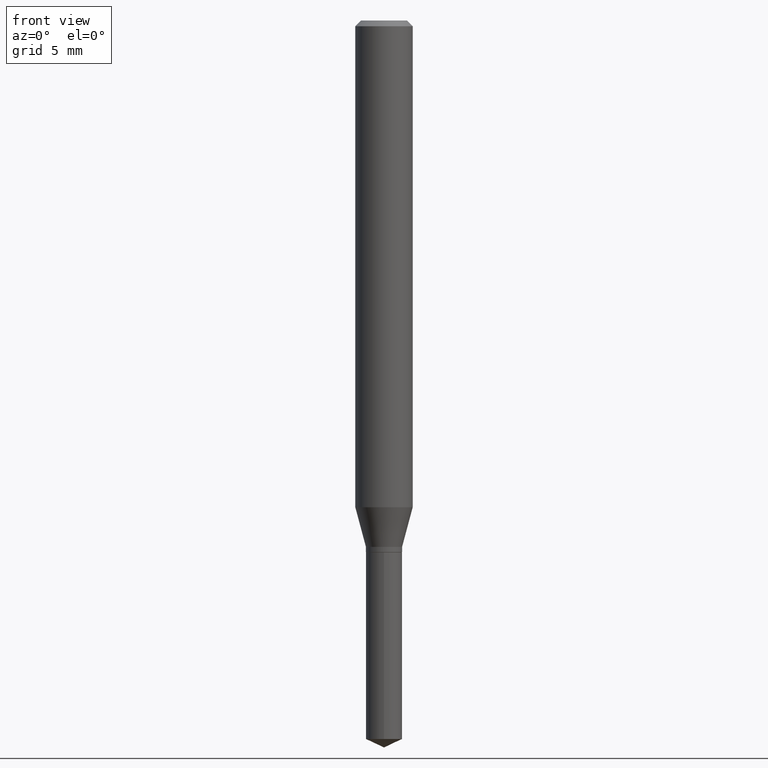
[diagram: clean part render]
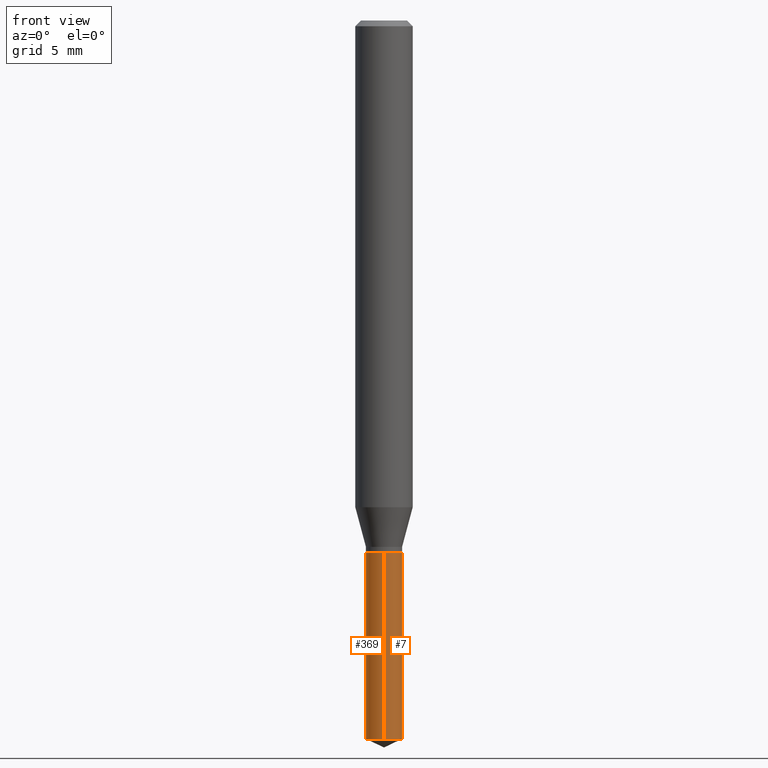
[diagram: same view with one multi-face feature highlighted, each face labeled with its STEP entity id]
A machine part, front view. The highlighted faces form ONE feature: a constant-radius fillet chain: 2 tangent blend faces with common blend radius 0.9449 mm. The faces share edges in the B-rep.
Their STEP definitions:
[1] entity #7 (Cylinder):
#4 = AXIS2_PLACEMENT_3D ( 'NONE', #81, #306, #110 ) ;
#7 = ADVANCED_FACE ( 'NONE', ( #235 ), #258, .T. ) ;
#18 = CARTESIAN_POINT ( 'NONE',  ( -2.597662116099023268E-16, -0.03720000000000382029, -1.094499999999999806 ) ) ;
#29 = EDGE_CURVE ( 'NONE', #421, #307, #217, .T. ) ;
#43 = DIRECTION ( 'NONE',  ( -2.445458899330790108E-29, 3.491495526022433599E-15, 1.000000000000000000 ) ) ;
#54 = DIRECTION ( 'NONE',  ( -2.445458899330790108E-29, 3.491495526022433205E-15, 1.000000000000000000 ) ) ;
#75 = CARTESIAN_POINT ( 'NONE',  ( 2.643218977027934365E-16, 0.03719999999999618057, -1.094500000000000028 ) ) ;
#81 = CARTESIAN_POINT ( 'NONE',  ( 2.676565608369631794E-29, -3.821426325363822773E-15, -1.094499999999999806 ) ) ;
#83 = ORIENTED_EDGE ( 'NONE', *, *, #126, .F. ) ;
#100 = CARTESIAN_POINT ( 'NONE',  ( 2.643218977027839702E-16, 0.03719999999999618057, -1.094500000000000028 ) ) ;
#110 = DIRECTION ( 'NONE',  ( -6.982962677686266711E-15, -1.000000000000000000, 3.671838701161644582E-15 ) ) ;
#126 = EDGE_CURVE ( 'NONE', #353, #421, #201, .T. ) ;
#130 = DIRECTION ( 'NONE',  ( -2.445458899330790108E-29, 3.491495526022433205E-15, 1.000000000000000000 ) ) ;
#136 = CARTESIAN_POINT ( 'NONE',  ( 2.643218977027933379E-16, 0.03719999999999482748, -1.478753355116634083 ) ) ;
#177 = EDGE_CURVE ( 'NONE', #240, #307, #254, .T. ) ;
#191 = ORIENTED_EDGE ( 'NONE', *, *, #29, .F. ) ;
#201 = LINE ( 'NONE', #18, #292 ) ;
#217 = CIRCLE ( 'NONE', #4, 0.03719999999999999696 ) ;
#225 = ORIENTED_EDGE ( 'NONE', *, *, #177, .T. ) ;
#235 = FACE_OUTER_BOUND ( 'NONE', #362, .T. ) ;
#240 = VERTEX_POINT ( 'NONE', #136 ) ;
#254 = LINE ( 'NONE', #100, #417 ) ;
#255 = CIRCLE ( 'NONE', #374, 0.03719999999999999696 ) ;
#258 = CYLINDRICAL_SURFACE ( 'NONE', #400, 0.03719999999999999696 ) ;
#262 = CARTESIAN_POINT ( 'NONE',  ( -2.597662116098928605E-16, -0.03720000000000515950, -1.478753355116634083 ) ) ;
#292 = VECTOR ( 'NONE', #319, 39.37007874015748143 ) ;
#306 = DIRECTION ( 'NONE',  ( -2.445458899330790108E-29, 3.491495526022433205E-15, 1.000000000000000000 ) ) ;
#307 = VERTEX_POINT ( 'NONE', #75 ) ;
#319 = DIRECTION ( 'NONE',  ( -2.445458899330790108E-29, 3.491495526022433599E-15, 1.000000000000000000 ) ) ;
#328 = CARTESIAN_POINT ( 'NONE',  ( 3.616241395237319644E-29, -5.163045195612661158E-15, -1.478753355116634083 ) ) ;
#341 = CARTESIAN_POINT ( 'NONE',  ( 2.676565608369631794E-29, -3.821426325363822773E-15, -1.094499999999999806 ) ) ;
#353 = VERTEX_POINT ( 'NONE', #262 ) ;
#362 = EDGE_LOOP ( 'NONE', ( #390, #225, #191, #83 ) ) ;
#374 = AXIS2_PLACEMENT_3D ( 'NONE', #328, #130, #446 ) ;
#390 = ORIENTED_EDGE ( 'NONE', *, *, #482, .T. ) ;
#397 = DIRECTION ( 'NONE',  ( -6.982962677686266711E-15, -1.000000000000000000, 3.671838701161644582E-15 ) ) ;
#400 = AXIS2_PLACEMENT_3D ( 'NONE', #341, #54, #397 ) ;
#417 = VECTOR ( 'NONE', #43, 39.37007874015748143 ) ;
#421 = VERTEX_POINT ( 'NONE', #474 ) ;
#446 = DIRECTION ( 'NONE',  ( -6.982962677686265133E-15, -1.000000000000000000, 0.000000000000000000 ) ) ;
#474 = CARTESIAN_POINT ( 'NONE',  ( -2.597662116099023268E-16, -0.03720000000000382029, -1.094499999999999806 ) ) ;
#482 = EDGE_CURVE ( 'NONE', #353, #240, #255, .T. ) ;
[2] entity #369 (Cylinder):
#3 = CARTESIAN_POINT ( 'NONE',  ( 2.676565608369631794E-29, -3.821426325363822773E-15, -1.094499999999999806 ) ) ;
#18 = CARTESIAN_POINT ( 'NONE',  ( -2.597662116099023268E-16, -0.03720000000000382029, -1.094499999999999806 ) ) ;
#23 = AXIS2_PLACEMENT_3D ( 'NONE', #3, #490, #460 ) ;
#36 = FACE_OUTER_BOUND ( 'NONE', #305, .T. ) ;
#43 = DIRECTION ( 'NONE',  ( -2.445458899330790108E-29, 3.491495526022433599E-15, 1.000000000000000000 ) ) ;
#65 = CIRCLE ( 'NONE', #461, 0.03719999999999999696 ) ;
#75 = CARTESIAN_POINT ( 'NONE',  ( 2.643218977027934365E-16, 0.03719999999999618057, -1.094500000000000028 ) ) ;
#89 = ORIENTED_EDGE ( 'NONE', *, *, #302, .F. ) ;
#100 = CARTESIAN_POINT ( 'NONE',  ( 2.643218977027839702E-16, 0.03719999999999618057, -1.094500000000000028 ) ) ;
#126 = EDGE_CURVE ( 'NONE', #353, #421, #201, .T. ) ;
#136 = CARTESIAN_POINT ( 'NONE',  ( 2.643218977027933379E-16, 0.03719999999999482748, -1.478753355116634083 ) ) ;
#149 = DIRECTION ( 'NONE',  ( -2.445458899330790108E-29, 3.491495526022433205E-15, 1.000000000000000000 ) ) ;
#170 = AXIS2_PLACEMENT_3D ( 'NONE', #257, #333, #485 ) ;
#177 = EDGE_CURVE ( 'NONE', #240, #307, #254, .T. ) ;
#201 = LINE ( 'NONE', #18, #292 ) ;
#224 = ORIENTED_EDGE ( 'NONE', *, *, #177, .F. ) ;
#240 = VERTEX_POINT ( 'NONE', #136 ) ;
#254 = LINE ( 'NONE', #100, #417 ) ;
#256 = ORIENTED_EDGE ( 'NONE', *, *, #434, .T. ) ;
#257 = CARTESIAN_POINT ( 'NONE',  ( 2.676565608369631794E-29, -3.821426325363822773E-15, -1.094499999999999806 ) ) ;
#262 = CARTESIAN_POINT ( 'NONE',  ( -2.597662116098928605E-16, -0.03720000000000515950, -1.478753355116634083 ) ) ;
#292 = VECTOR ( 'NONE', #319, 39.37007874015748143 ) ;
#302 = EDGE_CURVE ( 'NONE', #307, #421, #404, .T. ) ;
#305 = EDGE_LOOP ( 'NONE', ( #224, #256, #477, #89 ) ) ;
#307 = VERTEX_POINT ( 'NONE', #75 ) ;
#319 = DIRECTION ( 'NONE',  ( -2.445458899330790108E-29, 3.491495526022433599E-15, 1.000000000000000000 ) ) ;
#333 = DIRECTION ( 'NONE',  ( -2.445458899330790108E-29, 3.491495526022433205E-15, 1.000000000000000000 ) ) ;
#339 = CYLINDRICAL_SURFACE ( 'NONE', #23, 0.03719999999999999696 ) ;
#353 = VERTEX_POINT ( 'NONE', #262 ) ;
#357 = DIRECTION ( 'NONE',  ( -6.982962677686265133E-15, -1.000000000000000000, 0.000000000000000000 ) ) ;
#369 = ADVANCED_FACE ( 'NONE', ( #36 ), #339, .T. ) ;
#404 = CIRCLE ( 'NONE', #170, 0.03719999999999999696 ) ;
#417 = VECTOR ( 'NONE', #43, 39.37007874015748143 ) ;
#421 = VERTEX_POINT ( 'NONE', #474 ) ;
#433 = CARTESIAN_POINT ( 'NONE',  ( 3.616241395237319644E-29, -5.163045195612661158E-15, -1.478753355116634083 ) ) ;
#434 = EDGE_CURVE ( 'NONE', #240, #353, #65, .T. ) ;
#460 = DIRECTION ( 'NONE',  ( -6.982962677686266711E-15, -1.000000000000000000, 3.671838701161644582E-15 ) ) ;
#461 = AXIS2_PLACEMENT_3D ( 'NONE', #433, #149, #357 ) ;
#474 = CARTESIAN_POINT ( 'NONE',  ( -2.597662116099023268E-16, -0.03720000000000382029, -1.094499999999999806 ) ) ;
#477 = ORIENTED_EDGE ( 'NONE', *, *, #126, .T. ) ;
#485 = DIRECTION ( 'NONE',  ( -6.982962677686266711E-15, -1.000000000000000000, 3.671838701161644582E-15 ) ) ;
#490 = DIRECTION ( 'NONE',  ( -2.445458899330790108E-29, 3.491495526022433205E-15, 1.000000000000000000 ) ) ;